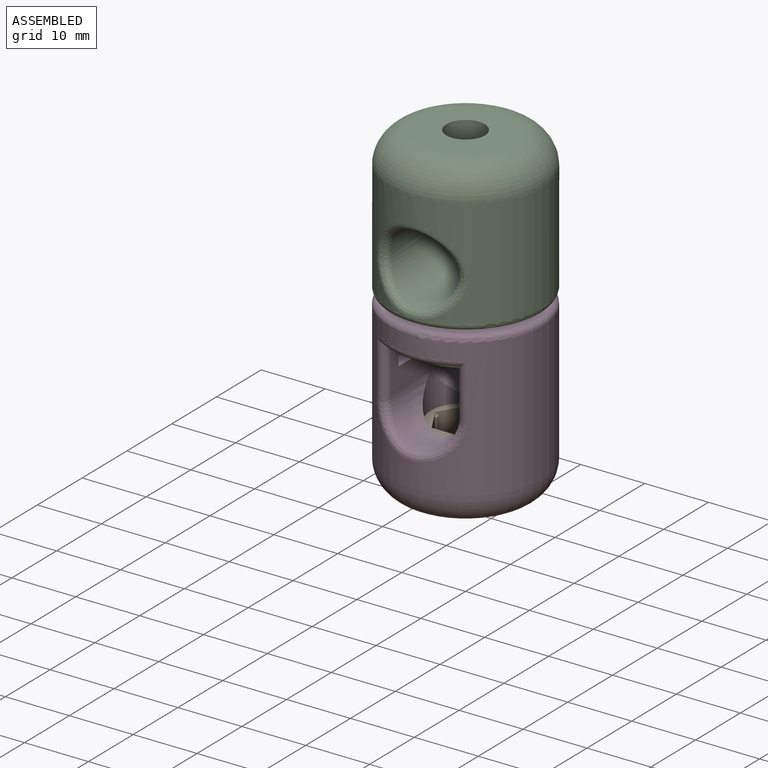
[diagram: assembled view]
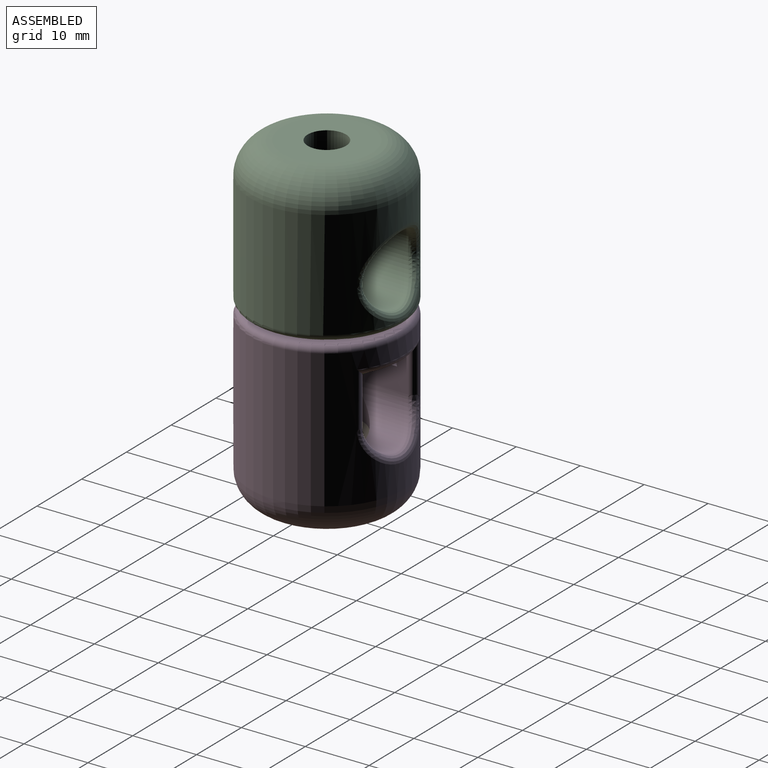
[diagram: assembled view, second angle]
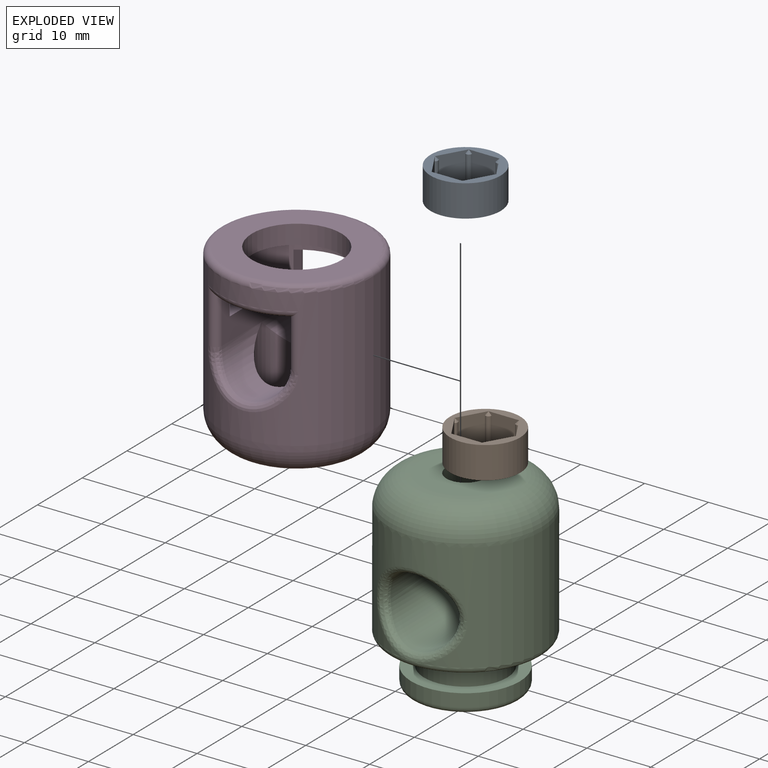
[diagram: exploded view]
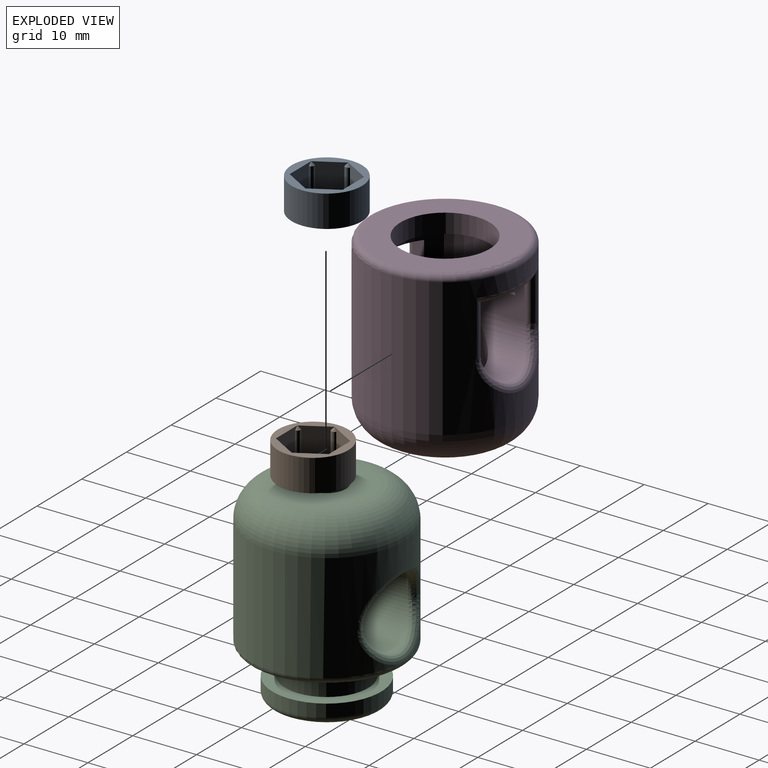
[diagram: exploded view, second angle]
ASSEMBLY  parts=4 mates=2
PART A: 27 faces, bbox 11x11x5 mm
  f0: plane 5x4.15mm, normal (0.87,-0.5,0), area 19.5mm2, adj f7,f8,f21,f22,f23,f24,f25,f26
  f1: plane 5x4.79mm, normal (0,-1,0), area 19.5mm2, adj f7,f8,f9,f10,f11,f21,f22,f23
  f2: plane 5x4.15mm, normal (-0.87,-0.5,0), area 19.5mm2, adj f7,f8,f9,f10,f11,f15,f16,f17
  f3: plane 5x4.15mm, normal (-0.87,0.5,0), area 19.5mm2, adj f7,f8,f12,f13,f14,f15,f16,f17
  f4: plane 5x4.79mm, normal (0,1,0), area 19.5mm2, adj f7,f8,f12,f13,f14,f18,f19,f20
  f5: plane 5x4.15mm, normal (0.87,0.5,0), area 19.5mm2, adj f7,f8,f18,f19,f20,f24,f25,f26
  f6: cylinder r=5.5mm len=11mm, axis (0,0,-1), area 172.8mm2, adj f7,f8
  f7: plane 11x11mm, normal (0,0,1), area 35.4mm2, adj f0,f1,f2,f3,f4,f5,f6
  f8: plane 11x11mm, normal (0,0,-1), area 35.4mm2, adj f0,f1,f2,f3,f4,f5,f6
  f9: cylinder r=0.5mm len=4mm, axis (0,0,-1), area 4.2mm2, adj f1,f2,f10,f11
  f10: cone r=0.5mm half-angle=45deg, axis (0,0,-1), area 0.4mm2, adj f1,f2,f9
  f11: cone r=0.5mm half-angle=45deg, axis (0,0,1), area 0.4mm2, adj f1,f2,f9
  f12: cylinder r=0.5mm len=4mm, axis (0,0,-1), area 4.2mm2, adj f3,f4,f13,f14
  f13: cone r=0.5mm half-angle=45deg, axis (0,0,-1), area 0.4mm2, adj f3,f4,f12
  f14: cone r=0.5mm half-angle=45deg, axis (0,0,1), area 0.4mm2, adj f3,f4,f12
  f15: cylinder r=0.5mm len=4mm, axis (0,0,-1), area 4.2mm2, adj f2,f3,f16,f17
  f16: cone r=0.5mm half-angle=45deg, axis (0,0,-1), area 0.4mm2, adj f2,f3,f15
  f17: cone r=0.5mm half-angle=45deg, axis (0,0,1), area 0.4mm2, adj f2,f3,f15
  f18: cylinder r=0.5mm len=4mm, axis (0,0,-1), area 4.2mm2, adj f4,f5,f19,f20
  f19: cone r=0.5mm half-angle=45deg, axis (0,0,-1), area 0.4mm2, adj f4,f5,f18
  f20: cone r=0.5mm half-angle=45deg, axis (0,0,1), area 0.4mm2, adj f4,f5,f18
  f21: cylinder r=0.5mm len=4mm, axis (0,0,-1), area 4.2mm2, adj f0,f1,f22,f23
  f22: cone r=0.5mm half-angle=45deg, axis (0,0,-1), area 0.4mm2, adj f0,f1,f21
  f23: cone r=0.5mm half-angle=45deg, axis (0,0,1), area 0.4mm2, adj f0,f1,f21
  f24: cylinder r=0.5mm len=4mm, axis (0,0,-1), area 4.2mm2, adj f0,f5,f25,f26
  f25: cone r=0.5mm half-angle=45deg, axis (0,0,-1), area 0.4mm2, adj f0,f5,f24
  f26: cone r=0.5mm half-angle=45deg, axis (0,0,1), area 0.4mm2, adj f0,f5,f24
PART B: same geometry as A
PART C: 16 faces, bbox 26x26x30.2 mm
  f0: cylinder r=5.5mm len=22mm, axis (0,1,0), area 567.8mm2, adj f8,f12,f13
  f1: cylinder r=12mm len=24mm, axis (0,0,-1), area 977.4mm2, adj f11,f12,f13,f14
  f2: cylinder r=8.5mm len=17mm, axis (0,0,1), area 106.8mm2, adj f4,f15
  f3: plane 15x15mm, normal (0,0,-1), area 176.7mm2, adj f15
  f4: plane 17x17mm, normal (0,0,1), area 94.2mm2, adj f2,f5
  f5: cylinder r=6.5mm len=13mm, axis (0,0,-1), area 171.5mm2, adj f4,f7
  f6: plane 14x14mm, normal (0,0,1), area 125.7mm2, adj f10,f11
  f7: plane 22x22mm, normal (0,0,-1), area 247.4mm2, adj f5,f14
  f8: cylinder r=5.5mm len=11mm, axis (0,0,-1), area 241.9mm2, adj f0,f9
  f9: plane 11x11mm, normal (0,0,-1), area 66.8mm2, adj f8,f10
  f10: cylinder r=3mm len=6mm, axis (0,0,1), area 94.2mm2, adj f6,f9
  f11: torus R=7mm, axis (0,0,1), area 502.5mm2, adj f1,f6
  f12: bspline ~14.19x13.01mm, area 72.5mm2, adj f0,f1
  f13: bspline ~14.19x13.01mm, area 72.5mm2, adj f0,f1
  f14: torus R=11mm, axis (0,0,1), area 114.8mm2, adj f1,f7
  f15: torus R=7.5mm, axis (0,0,-1), area 80.3mm2, adj f2,f3
PART D: 27 faces, bbox 26x26x27.6 mm
  f0: plane 18x18mm, normal (0,0,-1), area 100.5mm2, adj f2,f4
  f1: cylinder r=12mm len=24mm, axis (0,0,-1), area 1218.5mm2, adj f17,f18,f19,f20,f21,f22,f23,f24
  f2: cylinder r=7mm len=14mm, axis (0,0,-1), area 131.9mm2, adj f0,f3
  f3: plane 22x22mm, normal (0,0,1), area 226.2mm2, adj f2,f26
  f4: cylinder r=9mm len=18mm, axis (0,0,-1), area 222mm2, adj f0,f5,f6,f7,f8,f10,f12
  f5: plane 17.75x7.5mm, normal (1,0,0), area 76.1mm2, adj f4,f6,f7,f9,f10,f13,f18,f23
  f6: plane 11.33x3.88mm, normal (0,0,-1), area 23.4mm2, adj f4,f5,f8,f18,f20,f24
  f7: plane 11.33x3.88mm, normal (0,0,-1), area 23.4mm2, adj f4,f5,f8,f21,f23,f25
  f8: plane 17.75x7.5mm, normal (-1,0,0), area 76.1mm2, adj f4,f6,f7,f9,f12,f13,f20,f21
  f9: cylinder r=5.5mm len=11mm, axis (0,1,0), area 111.7mm2, adj f5,f8,f14,f19
  f10: plane 14.25x3.5mm, normal (0,0,1), area 34.8mm2, adj f4,f5
  f11: plane 14x14mm, normal (0,0,-1), area 125.7mm2, adj f16,f17
  f12: plane 14.25x3.5mm, normal (0,0,1), area 34.8mm2, adj f4,f8
  f13: cylinder r=5.5mm len=11mm, axis (0,1,0), area 111.7mm2, adj f5,f8,f14,f22
  f14: cylinder r=5.5mm len=11mm, axis (0,0,1), area 241.9mm2, adj f9,f13,f15
  f15: plane 11x11mm, normal (0,0,1), area 66.8mm2, adj f14,f16
  f16: cylinder r=3mm len=6mm, axis (0,0,-1), area 94.2mm2, adj f11,f15
  f17: torus R=7mm, axis (0,0,1), area 502.5mm2, adj f1,f11
  f18: cylinder r=1mm len=8.5mm, axis (0,0,-1), area 17.1mm2, adj f1,f5,f6,f19,f24
  f19: bspline ~14.18x7.81mm, area 36.2mm2, adj f1,f9,f18,f20
  f20: cylinder r=1mm len=8.5mm, axis (0,0,-1), area 17.1mm2, adj f1,f6,f8,f19,f24
  f21: cylinder r=1mm len=8.5mm, axis (0,0,-1), area 17.1mm2, adj f1,f7,f8,f22,f25
  f22: bspline ~14.18x7.81mm, area 36.2mm2, adj f1,f13,f21,f23
  f23: cylinder r=1mm len=8.5mm, axis (0,0,-1), area 17.1mm2, adj f1,f5,f7,f22,f25
  f24: torus R=11mm, axis (0,0,1), area 21.1mm2, adj f1,f6,f18,f20
  f25: torus R=11mm, axis (0,0,1), area 21.1mm2, adj f1,f7,f21,f23
  f26: torus R=11mm, axis (0,0,1), area 114.8mm2, adj f1,f3
PLACE A rot(axis=(1,0,0),180deg) t=(-2.32,14.76,65.91)mm
PLACE B t=(-2.32,14.76,24.71)mm
PLACE C t=(-2.32,14.76,19.71)mm
PLACE D t=(-2.32,14.76,19.71)mm
MATE fastened B.f6 <-> D.f4  axis (0,0,-1) through (-2.32,14.76,24.71)mm
MATE fastened A.f6 <-> C.f10  axis (0,0,1) through (-2.32,14.76,65.91)mm
